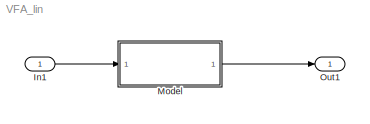
MODEL VFA_lin
KIND model
BLOCK [Inport] In1
  IconDisplay = Port number
  SID = 1
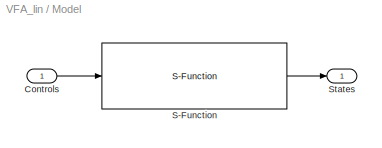
BLOCK [SubSystem] Model
  Ports = [1, 1]
  RequestExecContextInheritance = off
  SID = 4
  Variant = off
BLOCK [Inport] Model/Controls
  IconDisplay = Port number
  SID = 5
BLOCK [S-Function] Model/S-Function
  EnableBusSupport = off
  FunctionName = VFA_v1
  Parameters = data,stateinit
  Ports = [1, 1]
  SFcnIsStateOwnerBlock = off
  SFunctionDeploymentMode = off
  SID = 6
BLOCK [Outport] Model/States
  IconDisplay = Port number
  SID = 7
BLOCK [Outport] Out1
  IconDisplay = Port number
  SID = 9
LINE In1:1 -> Model:1
LINE Model/Controls:1 -> Model/S-Function:1
LINE Model/S-Function:1 -> Model/States:1
LINE Model:1 -> Out1:1
